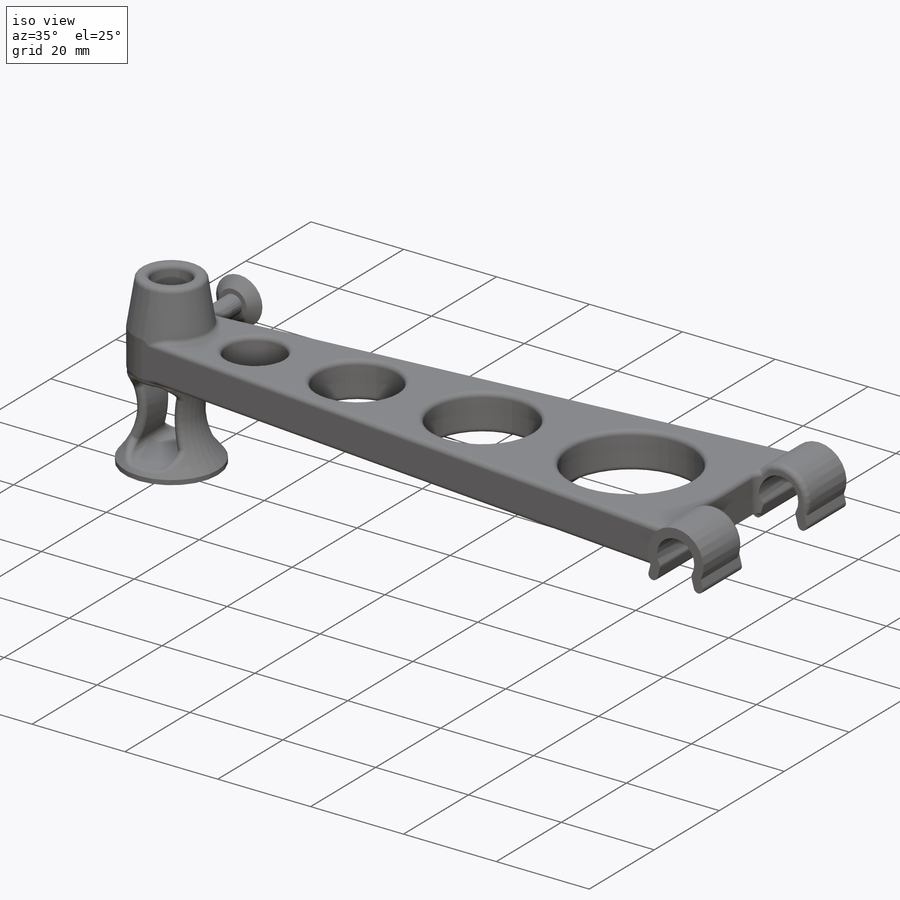
[diagram: iso view]
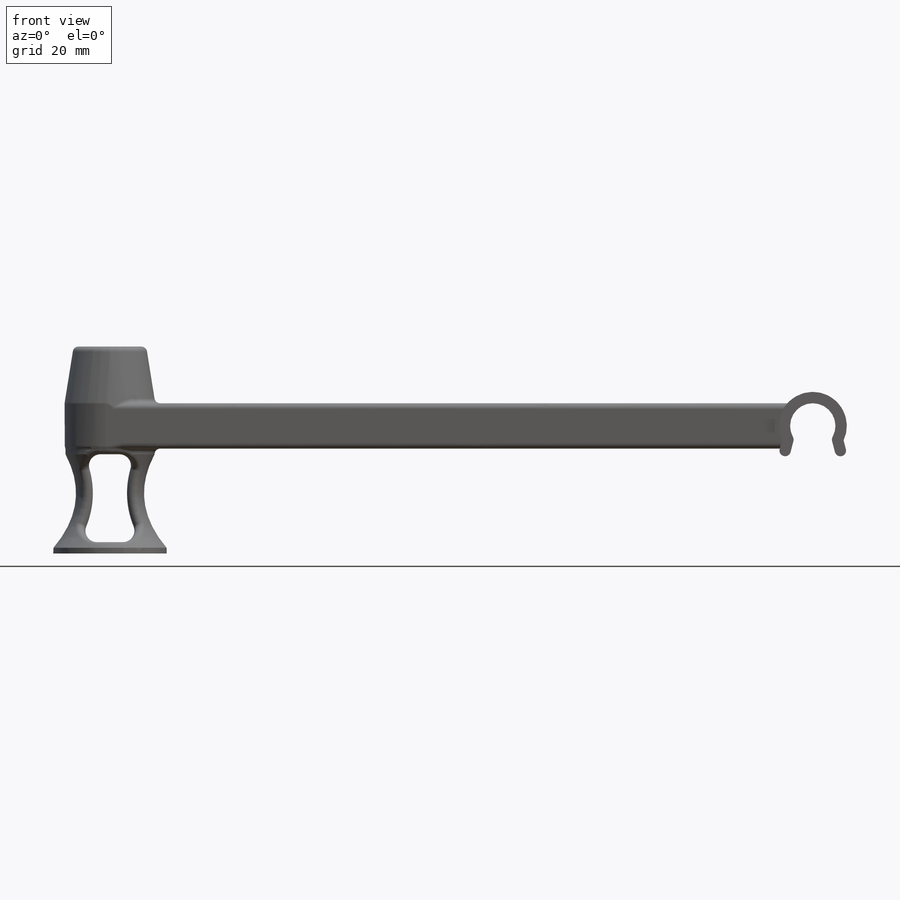
[diagram: front view]
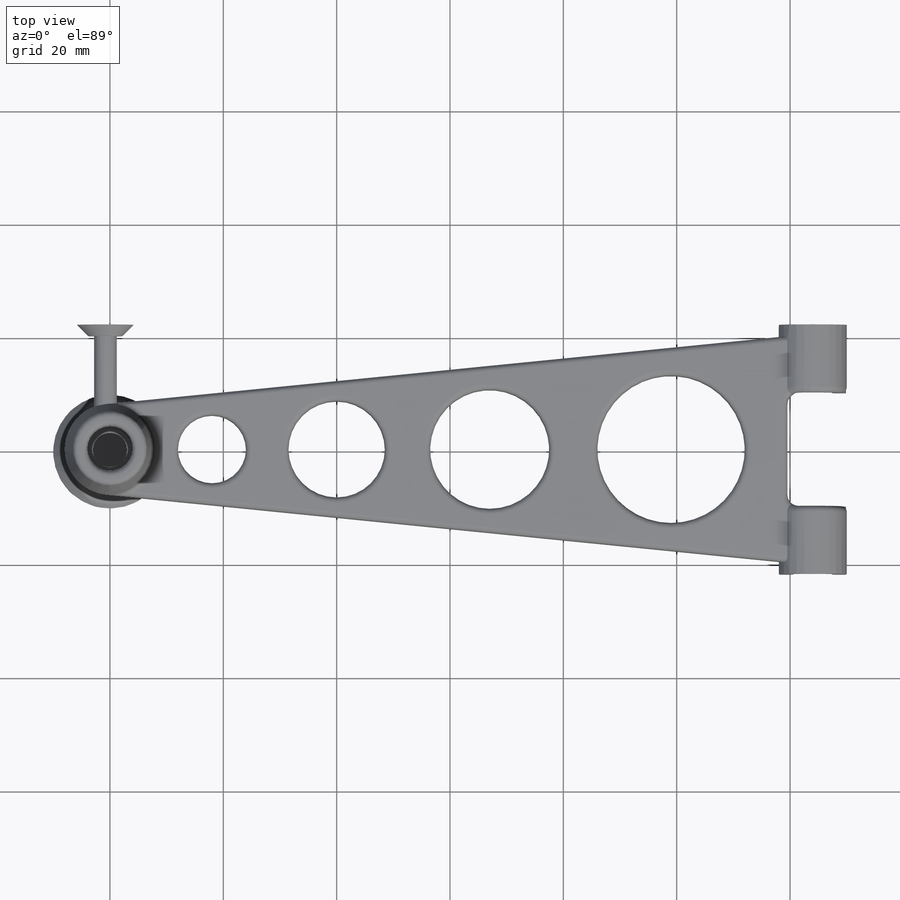
[diagram: top view]
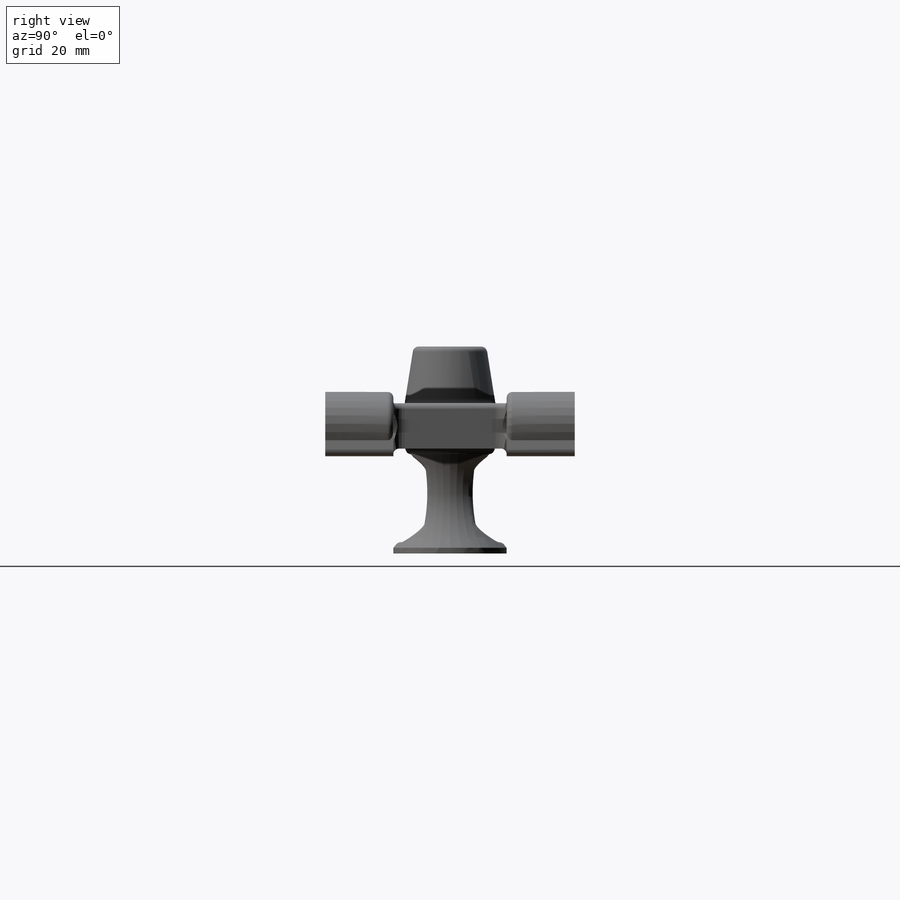
[diagram: right view]
SOLIDWORKS PART (.sldprt)
format: sldprt  version: not decoded by parser v0  size: 962,560 bytes
history: native  units: mm
features: sketch x14, extrude x9, fillet x8, cut_extrude x4, material x1, plane x1, revolve x1 (+12 scaffold rows collapsed)
feature tree (50):
  scaffold x12  (default folders/planes/origin — collapsed)
  material  "Material <not specified>"
  sketch  "Sketch1"  dims[c1.D1=8.0mm c1.D5=12.0mm c1.D6=17.0mm c1.D7=21.0mm c1.D8=26.0mm c1.D3=120.0mm c1.D4=40.0mm c2.D8=45.0mm c2.D3=120.0mm c2.D9=22.0mm c2.D10=27.0mm c2.D11=32.0mm c2.D12=18.0mm c2.D2=4.0mm c2.D5=7.0mm c2.D6=2.5mm c2.D7=2.5mm c3.D5=5.2mm c3.D6=2.4mm c3.D7=2.4mm]
  extrude  "Boss-Extrude1"  Depth=8mm
  plane  "Plane1"
  sketch  "Sketch2"  dims[c1.D1=8.0mm c1.D5=~2.429533mm c1.D6=2.0mm c2.D1=8.0mm c2.D2=~10.356257mm c2.D4=7.0mm c2.D5=1.5mm c2.D6=~0.71954mm c2.D3=0.5mm c3.D4=2.0mm c3.D5=8.75mm c3.D2=2.0mm c3.D3=2.0mm c4.D2=2.0mm]
  extrude  "Boss-Extrude2"  Depth=10mm
  extrude  "Boss-Extrude3"  [1 undecoded]
  sketch  "Sketch2<3>"  dims[D1=10.0mm D2=2.0mm]
  sketch  "Sketch4"
  cut_extrude  "Cut-Extrude1"  [1 undecoded]
  fillet  "Fillet1"  Radius=2mm
  sketch  "Sketch5"
  extrude  "Boss-Extrude4"  Depth=10mm
  sketch  "Sketch6"
  cut_extrude  "Cut-Extrude2"  [1 undecoded]
  fillet  "Fillet6"  Radius=1mm
  sketch  "Sketch7"
  extrude  "Boss-Extrude5"  Depth=1mm
  sketch  "Sketch8"
  extrude  "Boss-Extrude7"  Depth=17.5mm
  sketch  "Sketch9"  dims[D1=20.0mm]
  extrude  "Boss-Extrude8"  Depth=1mm
  sketch  "Sketch10"
  revolve  "Revolve1"  Angle=360deg
  sketch  "Sketch11"  dims[D3=1.0mm D1=3.0mm D2=3.0mm]
  cut_extrude  "Cut-Extrude3"  [1 undecoded]
  fillet  "Fillet7"  Radius=2mm
  fillet  "Fillet8"  Radius=1mm
  sketch  "Sketch12"  dims[D1=1.0mm]
  cut_extrude  "Cut-Extrude4"  Depth=11mm
  fillet  "Fillet9"  Radius=1mm
  fillet  "Fillet13"  Radius=1mm
  sketch  "Sketch13"  dims[D1=4.0mm]
  extrude  "Boss-Extrude9"  [1 undecoded]
  sketch  "Sketch14"  dims[D1=10.0mm]
  extrude  "Boss-Extrude10"  Depth=2mm
  fillet  "Fillet14"  Radius=1mm
  fillet  "Fillet15"  Radius=1mm
decode coverage: 25 of 36 modeling features carry decoded parameters
note: ~ marks probable driven/reference dimensions
note: 5 parameter values undecoded
summary: no parameter record found for 5 features
note: suppression state not decoded; provenance and decode notes live in map.json
